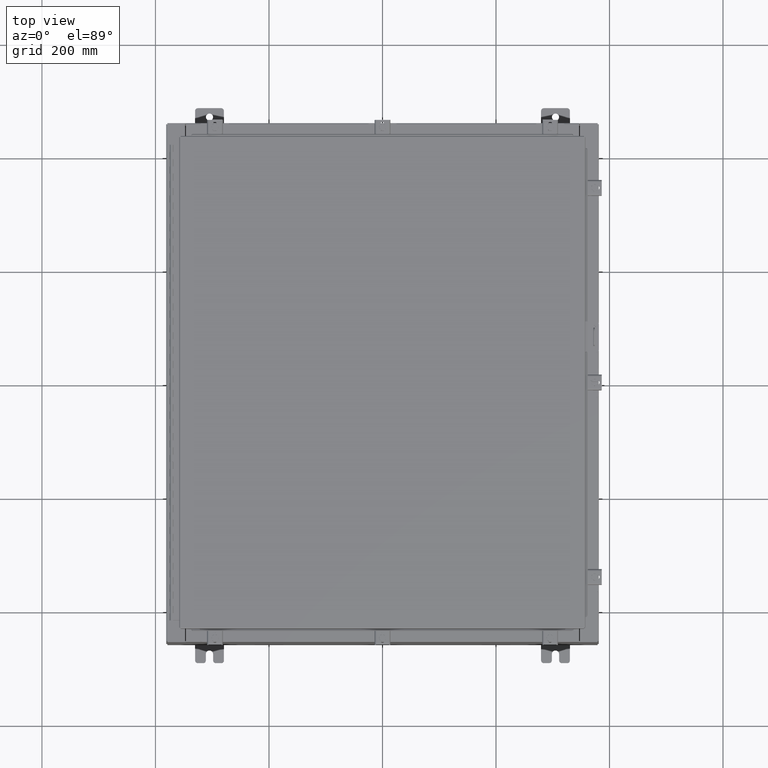
[diagram: clean part render]
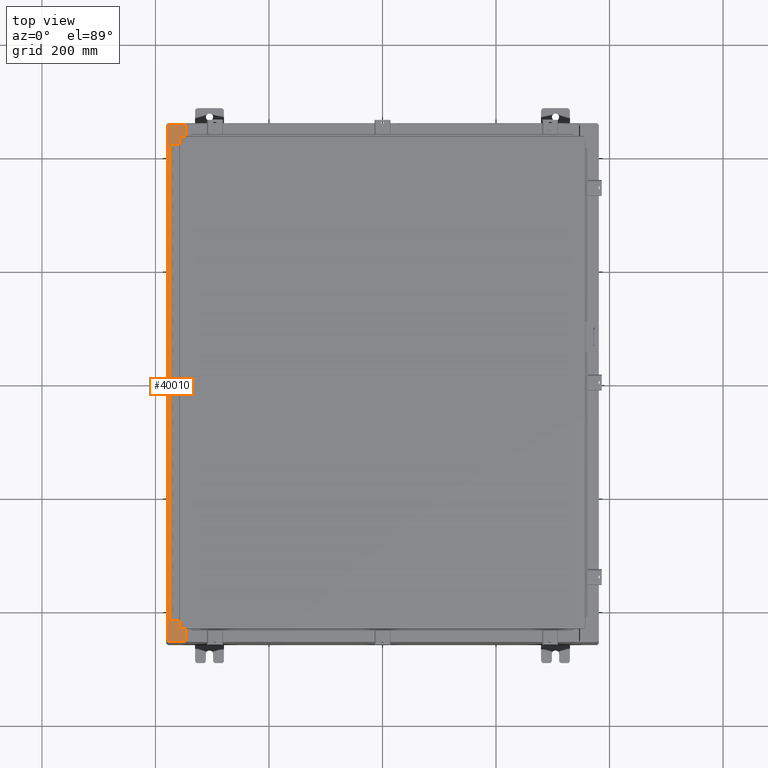
[diagram: same view with one face highlighted and labeled with its STEP entity id]
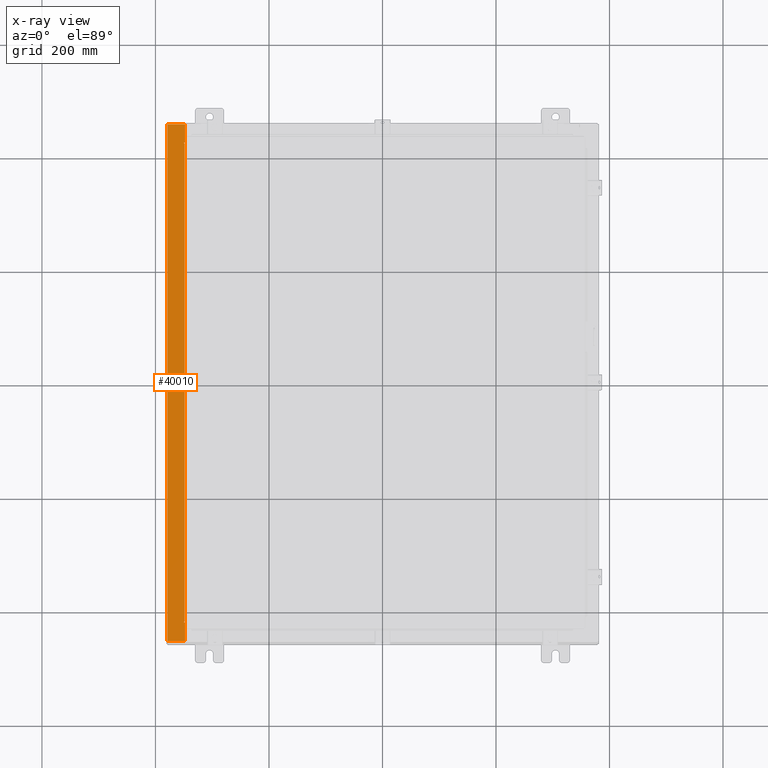
[diagram: x-ray of the same camera — body ghosted, the highlighted face saturated]
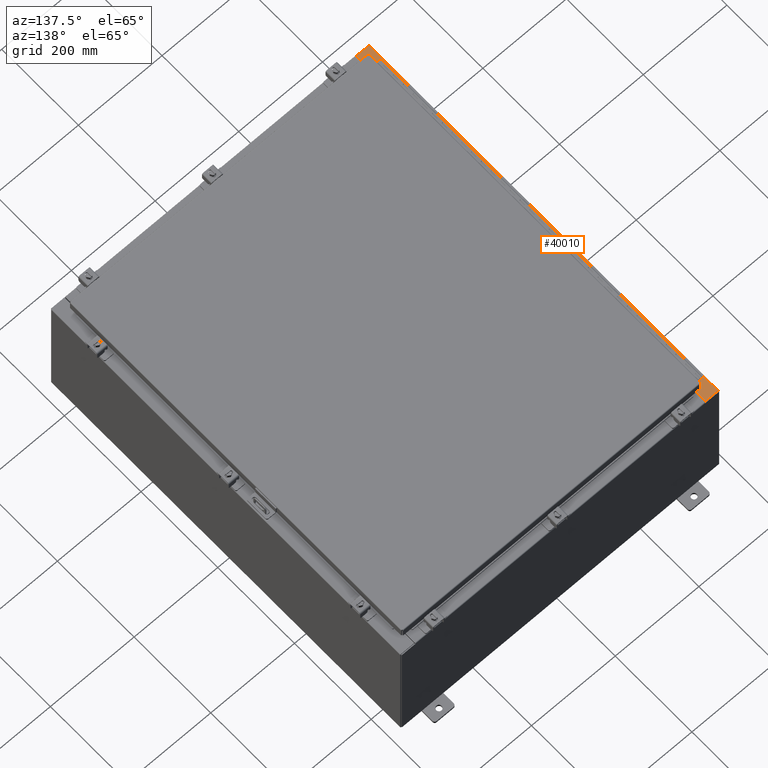
[diagram: same view with one face highlighted and labeled with its STEP entity id]
A machine part, top view. The second image highlights one B-rep face of the part: STEP entity #40010.
The next image is the same camera in x-ray: the body ghosted, the highlighted face saturated — about 0% of this face is hidden behind the body in this view.
A second angle (auxiliary view) of the same face is appended — the face is thin or edge-on in the first view.
In plain terms, the highlighted planar face has unit normal (0, 0, -1).
Its self-contained STEP definition (entity closure, byte-faithful):
#295 = ORIENTED_EDGE ( 'NONE', *, *, #31483, .F. ) ;
#795 = EDGE_CURVE ( 'NONE', #13929, #35645, #37022, .T. ) ;
#948 = CARTESIAN_POINT ( 'NONE',  ( -13.69970000000004400, 0.0000000000000000000, 11.92530000000000900 ) ) ;
#1109 = CARTESIAN_POINT ( 'NONE',  ( -13.75005000000004400, 16.63110000000000000, 11.92530000000000900 ) ) ;
#1952 = DIRECTION ( 'NONE',  ( 1.000000000000000000, 0.0000000000000000000, 0.0000000000000000000 ) ) ;
#2830 = CARTESIAN_POINT ( 'NONE',  ( -13.71270000000004600, -16.59374999999998900, 11.92530000000001200 ) ) ;
#3324 = CARTESIAN_POINT ( 'NONE',  ( -13.75005000000004400, 16.59375000000000000, 11.92530000000000900 ) ) ;
#3427 = DIRECTION ( 'NONE',  ( -1.000000000000000000, 0.0000000000000000000, 4.340572780400098900E-014 ) ) ;
#3498 = VERTEX_POINT ( 'NONE', #17846 ) ;
#3952 = DIRECTION ( 'NONE',  ( 1.000000000000000000, 0.0000000000000000000, 0.0000000000000000000 ) ) ;
#4012 = ORIENTED_EDGE ( 'NONE', *, *, #7742, .F. ) ;
#4130 = LINE ( 'NONE', #43240, #21026 ) ;
#4591 = CARTESIAN_POINT ( 'NONE',  ( -13.75005000000004400, -16.63109999999998600, 11.92530000000001200 ) ) ;
#4996 = VECTOR ( 'NONE', #28333, 39.37007874015748100 ) ;
#5073 = EDGE_CURVE ( 'NONE', #37539, #3498, #18104, .T. ) ;
#5902 = CIRCLE ( 'NONE', #24656, 0.01867499999999949400 ) ;
#6254 = EDGE_LOOP ( 'NONE', ( #4012, #15615, #17191, #40378, #7010, #25803, #23624, #295, #16833, #19802, #7448, #24500 ) ) ;
#6628 = VERTEX_POINT ( 'NONE', #35459 ) ;
#6959 = CARTESIAN_POINT ( 'NONE',  ( -13.69970000000004400, 16.63110000000000000, 11.92530000000000900 ) ) ;
#6987 = LINE ( 'NONE', #6959, #14911 ) ;
#7010 = ORIENTED_EDGE ( 'NONE', *, *, #38511, .T. ) ;
#7448 = ORIENTED_EDGE ( 'NONE', *, *, #13763, .F. ) ;
#7742 = EDGE_CURVE ( 'NONE', #24181, #13929, #6987, .T. ) ;
#7830 = CARTESIAN_POINT ( 'NONE',  ( -14.91230000000004500, 17.92530000000000000, 11.92530000000000000 ) ) ;
#8172 = CARTESIAN_POINT ( 'NONE',  ( -14.91230000000004500, 17.92530000000000000, 11.92530000000000000 ) ) ;
#8571 = FACE_OUTER_BOUND ( 'NONE', #6254, .T. ) ;
#9388 = CARTESIAN_POINT ( 'NONE',  ( -13.69970000000004400, -17.92530000000000000, 11.92530000000000900 ) ) ;
#9806 = CARTESIAN_POINT ( 'NONE',  ( -13.75005000000004400, 16.61242500000000200, 11.92530000000001200 ) ) ;
#10008 = EDGE_CURVE ( 'NONE', #27576, #37539, #4130, .T. ) ;
#10480 = VECTOR ( 'NONE', #27930, 39.37007874015748100 ) ;
#10850 = LINE ( 'NONE', #18638, #11937 ) ;
#11501 = EDGE_CURVE ( 'NONE', #24181, #34629, #18408, .T. ) ;
#11836 = LINE ( 'NONE', #4591, #19766 ) ;
#11937 = VECTOR ( 'NONE', #42182, 39.37007874015748100 ) ;
#13215 = DIRECTION ( 'NONE',  ( 1.000000000000000000, 0.0000000000000000000, 0.0000000000000000000 ) ) ;
#13763 = EDGE_CURVE ( 'NONE', #35645, #27576, #16345, .T. ) ;
#13929 = VERTEX_POINT ( 'NONE', #1109 ) ;
#14859 = CARTESIAN_POINT ( 'NONE',  ( -13.69970000000004400, -16.63109999999998600, 11.92530000000000900 ) ) ;
#14911 = VECTOR ( 'NONE', #3427, 39.37007874015748100 ) ;
#15075 = PLANE ( 'NONE',  #24663 ) ;
#15615 = ORIENTED_EDGE ( 'NONE', *, *, #11501, .T. ) ;
#15666 = CARTESIAN_POINT ( 'NONE',  ( -13.71270000000004600, -16.59374999999998900, 11.92530000000001200 ) ) ;
#15996 = VERTEX_POINT ( 'NONE', #14859 ) ;
#16110 = LINE ( 'NONE', #8172, #4996 ) ;
#16345 = LINE ( 'NONE', #27535, #42129 ) ;
#16608 = EDGE_CURVE ( 'NONE', #42822, #15996, #10850, .T. ) ;
#16833 = ORIENTED_EDGE ( 'NONE', *, *, #5073, .F. ) ;
#17191 = ORIENTED_EDGE ( 'NONE', *, *, #19366, .T. ) ;
#17846 = CARTESIAN_POINT ( 'NONE',  ( -13.75005000000004400, -16.59374999999998900, 11.92530000000000900 ) ) ;
#18104 = LINE ( 'NONE', #2830, #36027 ) ;
#18408 = LINE ( 'NONE', #948, #10480 ) ;
#18638 = CARTESIAN_POINT ( 'NONE',  ( -13.69970000000004400, 0.0000000000000000000, 11.92530000000000900 ) ) ;
#19342 = LINE ( 'NONE', #37753, #36178 ) ;
#19366 = EDGE_CURVE ( 'NONE', #34629, #30295, #19342, .T. ) ;
#19766 = VECTOR ( 'NONE', #24752, 39.37007874015748100 ) ;
#19802 = ORIENTED_EDGE ( 'NONE', *, *, #10008, .F. ) ;
#20980 = DIRECTION ( 'NONE',  ( -1.000000000000000000, 0.0000000000000000000, -7.132762385546384700E-015 ) ) ;
#21022 = DIRECTION ( 'NONE',  ( 1.000000000000000000, -0.0000000000000000000, 7.132762385546384700E-015 ) ) ;
#21026 = VECTOR ( 'NONE', #23044, 39.37007874015748100 ) ;
#21840 = DIRECTION ( 'NONE',  ( -1.000000000000000000, 0.0000000000000000000, -7.132762385546384700E-015 ) ) ;
#22169 = DIRECTION ( 'NONE',  ( -7.132762385546384700E-015, -0.0000000000000000000, 1.000000000000000000 ) ) ;
#22196 = EDGE_CURVE ( 'NONE', #28644, #30295, #16110, .T. ) ;
#22282 = CARTESIAN_POINT ( 'NONE',  ( -14.91230000000004500, -17.92530000000000000, 11.92530000000000000 ) ) ;
#23044 = DIRECTION ( 'NONE',  ( -0.0000000000000000000, -1.000000000000000000, -0.0000000000000000000 ) ) ;
#23624 = ORIENTED_EDGE ( 'NONE', *, *, #28467, .F. ) ;
#24181 = VERTEX_POINT ( 'NONE', #40124 ) ;
#24500 = ORIENTED_EDGE ( 'NONE', *, *, #795, .F. ) ;
#24656 = AXIS2_PLACEMENT_3D ( 'NONE', #42344, #22169, #1952 ) ;
#24663 = AXIS2_PLACEMENT_3D ( 'NONE', #38628, #42012, #21840 ) ;
#24752 = DIRECTION ( 'NONE',  ( 1.000000000000000000, 0.0000000000000000000, -4.340572780400098900E-014 ) ) ;
#25803 = ORIENTED_EDGE ( 'NONE', *, *, #16608, .T. ) ;
#26401 = DIRECTION ( 'NONE',  ( -1.000000000000000000, 0.0000000000000000000, 0.0000000000000000000 ) ) ;
#27121 = VECTOR ( 'NONE', #21022, 39.37007874015748100 ) ;
#27535 = CARTESIAN_POINT ( 'NONE',  ( -13.75005000000004400, 16.59375000000000000, 11.92530000000001200 ) ) ;
#27576 = VERTEX_POINT ( 'NONE', #42380 ) ;
#27930 = DIRECTION ( 'NONE',  ( 0.0000000000000000000, 1.000000000000000000, 0.0000000000000000000 ) ) ;
#28333 = DIRECTION ( 'NONE',  ( -0.0000000000000000000, 1.000000000000000000, -0.0000000000000000000 ) ) ;
#28467 = EDGE_CURVE ( 'NONE', #6628, #15996, #11836, .T. ) ;
#28644 = VERTEX_POINT ( 'NONE', #22282 ) ;
#30295 = VERTEX_POINT ( 'NONE', #7830 ) ;
#31483 = EDGE_CURVE ( 'NONE', #3498, #6628, #5902, .T. ) ;
#33365 = DIRECTION ( 'NONE',  ( -7.132762385546384700E-015, -0.0000000000000000000, 1.000000000000000000 ) ) ;
#34629 = VERTEX_POINT ( 'NONE', #40830 ) ;
#35459 = CARTESIAN_POINT ( 'NONE',  ( -13.75005000000004400, -16.63109999999998600, 11.92530000000000900 ) ) ;
#35645 = VERTEX_POINT ( 'NONE', #3324 ) ;
#36027 = VECTOR ( 'NONE', #26401, 39.37007874015748100 ) ;
#36178 = VECTOR ( 'NONE', #20980, 39.37007874015748100 ) ;
#37022 = CIRCLE ( 'NONE', #42849, 0.01867499999999949400 ) ;
#37120 = LINE ( 'NONE', #37801, #27121 ) ;
#37539 = VERTEX_POINT ( 'NONE', #15666 ) ;
#37753 = CARTESIAN_POINT ( 'NONE',  ( -8.532114493224043100E-014, 17.92530000000000000, 11.92530000000010800 ) ) ;
#37801 = CARTESIAN_POINT ( 'NONE',  ( -8.532114493224043100E-014, -17.92530000000000000, 11.92530000000010800 ) ) ;
#38511 = EDGE_CURVE ( 'NONE', #28644, #42822, #37120, .T. ) ;
#38628 = CARTESIAN_POINT ( 'NONE',  ( -8.532114493224043100E-014, 0.0000000000000000000, 11.92530000000010800 ) ) ;
#40010 = ADVANCED_FACE ( 'NONE', ( #8571 ), #15075, .F. ) ;
#40124 = CARTESIAN_POINT ( 'NONE',  ( -13.69970000000004400, 16.63110000000000000, 11.92530000000000900 ) ) ;
#40378 = ORIENTED_EDGE ( 'NONE', *, *, #22196, .F. ) ;
#40830 = CARTESIAN_POINT ( 'NONE',  ( -13.69970000000004400, 17.92530000000000000, 11.92530000000000900 ) ) ;
#42012 = DIRECTION ( 'NONE',  ( 7.132762385546384700E-015, 0.0000000000000000000, -1.000000000000000000 ) ) ;
#42129 = VECTOR ( 'NONE', #3952, 39.37007874015748100 ) ;
#42182 = DIRECTION ( 'NONE',  ( 0.0000000000000000000, 1.000000000000000000, 0.0000000000000000000 ) ) ;
#42344 = CARTESIAN_POINT ( 'NONE',  ( -13.75005000000004400, -16.61242499999998800, 11.92530000000001200 ) ) ;
#42380 = CARTESIAN_POINT ( 'NONE',  ( -13.71270000000004600, 16.59375000000000000, 11.92530000000001200 ) ) ;
#42822 = VERTEX_POINT ( 'NONE', #9388 ) ;
#42849 = AXIS2_PLACEMENT_3D ( 'NONE', #9806, #33365, #13215 ) ;
#43240 = CARTESIAN_POINT ( 'NONE',  ( -13.71270000000004600, 16.59374999999999600, 11.92530000000001200 ) ) ;